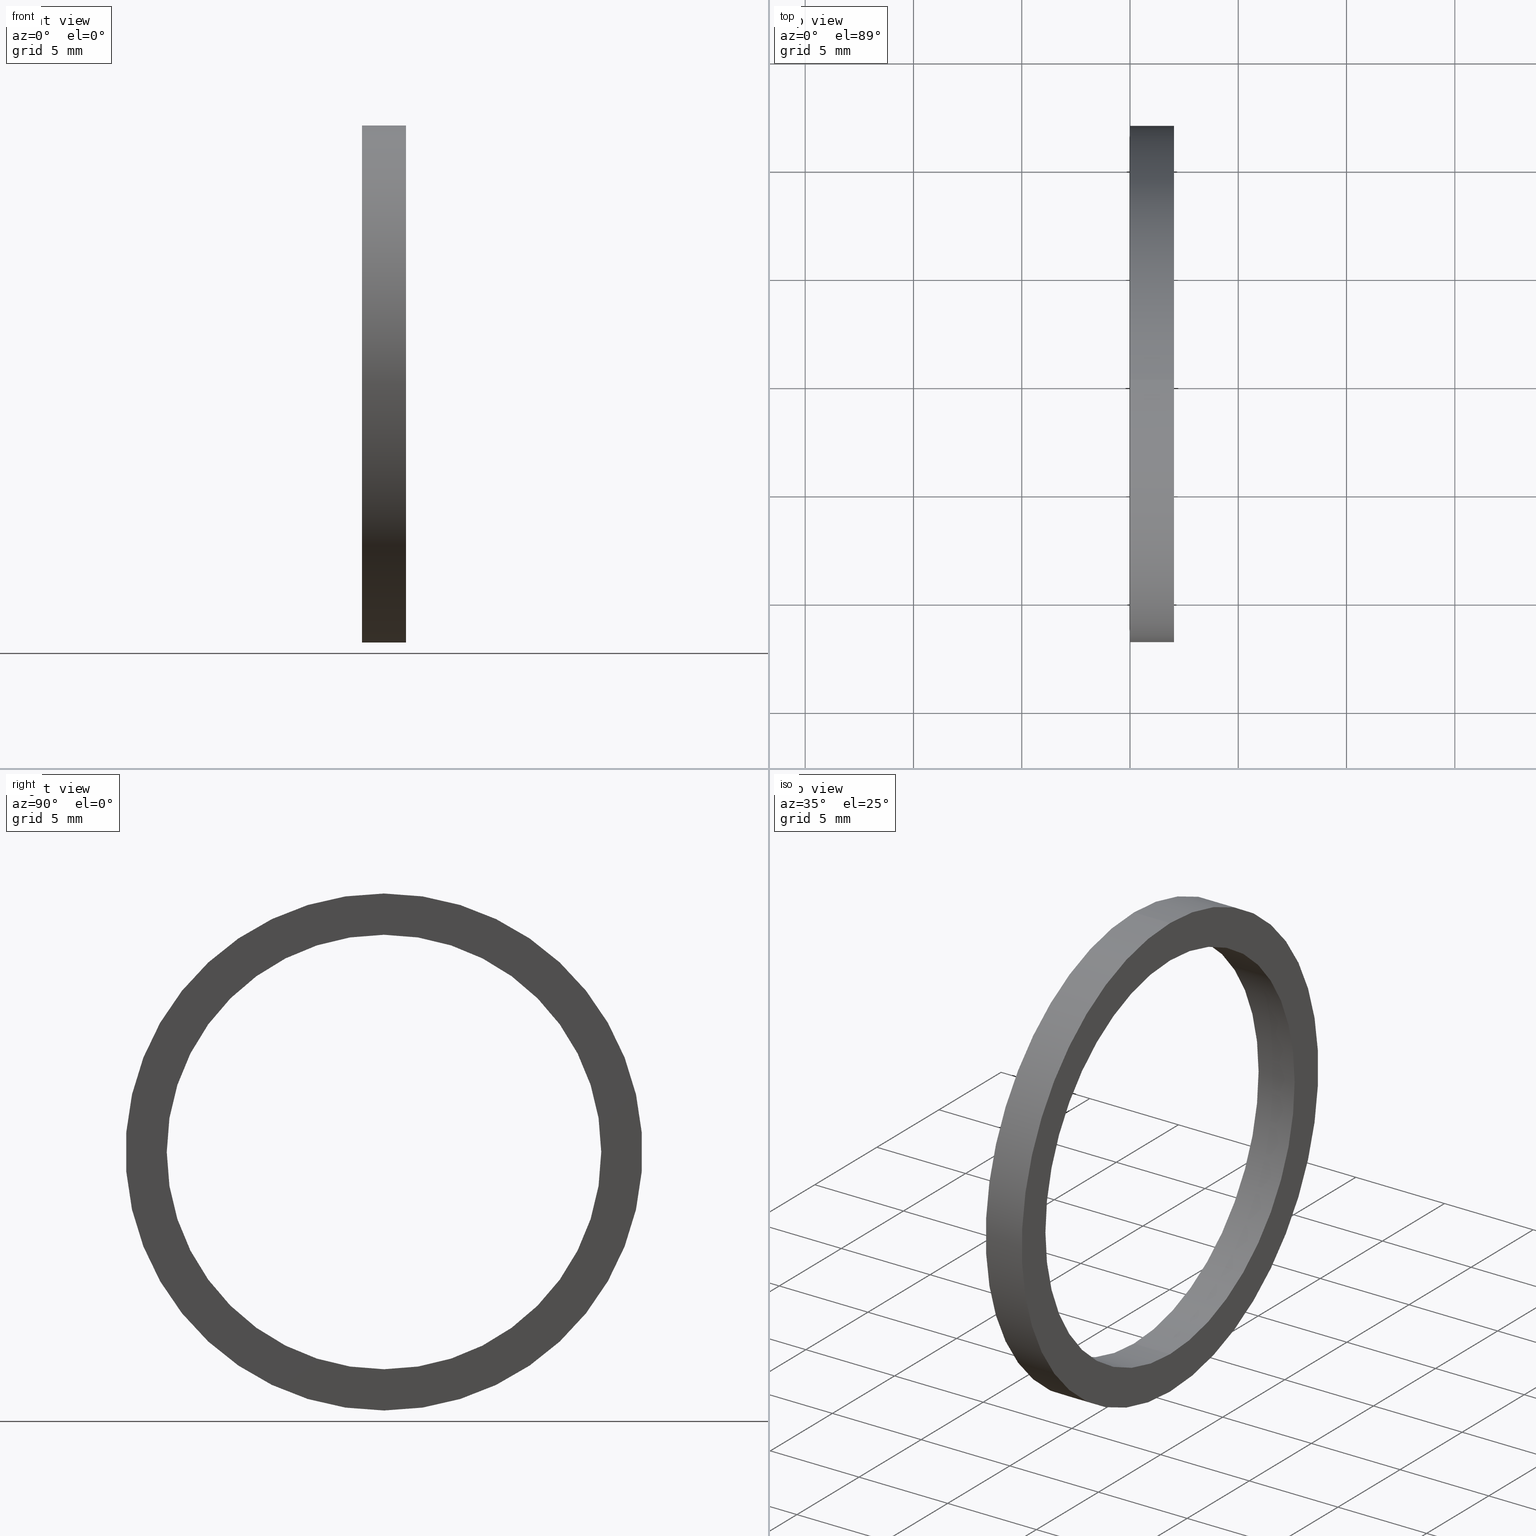
[diagram: canonical four-view strip — front | top / right | iso, engineering-drawing reading convention]
A machine part, canonical four-view strip (front | top / right | iso — engineering-drawing reading convention). The complete STEP part file that produces these views, byte-faithful:
ISO-10303-21;
HEADER;
FILE_DESCRIPTION (( 'STEP AP203' ),
    '1' );
FILE_NAME ('MS-20-NY.STEP',
    '2008-03-29T07:47:55',
    ( '' ),
    ( '' ),
    'SwSTEP 2.0',
    'SolidWorks 2007',
    '' );
FILE_SCHEMA (( 'CONFIG_CONTROL_DESIGN' ));
ENDSEC;

DATA;
#1 = EDGE_LOOP ( 'NONE', ( #6, #2, #64, #65 ) ) ;
#2 = ORIENTED_EDGE ( 'NONE', *, *, #63, .T. ) ;
#3 = ORIENTED_EDGE ( 'NONE', *, *, #13, .F. ) ;
#4 = VERTEX_POINT ( 'NONE', #27 ) ;
#5 = ADVANCED_FACE ( 'NONE', ( #140 ), #137, .T. ) ;
#6 = ORIENTED_EDGE ( 'NONE', *, *, #44, .F. ) ;
#7 = EDGE_LOOP ( 'NONE', ( #57, #38, #39, #40 ) ) ;
#8 = EDGE_CURVE ( 'NONE', #14, #37, #138, .T. ) ;
#9 = EDGE_LOOP ( 'NONE', ( #54, #45, #47, #58 ) ) ;
#10 = ADVANCED_FACE ( 'NONE', ( #129 ), #128, .T. ) ;
#11 = ORIENTED_EDGE ( 'NONE', *, *, #12, .F. ) ;
#12 = EDGE_CURVE ( 'NONE', #34, #14, #123, .T. ) ;
#13 = EDGE_CURVE ( 'NONE', #37, #14, #119, .T. ) ;
#14 = VERTEX_POINT ( 'NONE', #114 ) ;
#15 = ORIENTED_EDGE ( 'NONE', *, *, #13, .T. ) ;
#16 = CC_DESIGN_PERSON_AND_ORGANIZATION_ASSIGNMENT ( #142, #17, ( #143 ) ) ;
#17 = PERSON_AND_ORGANIZATION_ROLE ( 'classification_officer' ) ;
#18 = CC_DESIGN_PERSON_AND_ORGANIZATION_ASSIGNMENT ( #20, #19, ( #23 ) ) ;
#19 = PERSON_AND_ORGANIZATION_ROLE ( 'design_owner' ) ;
#20 = PERSON_AND_ORGANIZATION ( #22, #21 ) ;
#21 = ORGANIZATION ( 'UNSPECIFIED', 'UNSPECIFIED', '' ) ;
#22 = PERSON ( 'UNSPECIFIED', 'UNSPECIFIED', 'UNSPECIFIED', ('UNSPECIFIED'), ('UNSPECIFIED'), ('UNSPECIFIED') ) ;
#23 = PRODUCT ( 'MS-20-NY', 'MS-20-NY', '', ( #24 ) ) ;
#24 = MECHANICAL_CONTEXT ( 'NONE', #26, 'mechanical' ) ;
#25 = APPLICATION_PROTOCOL_DEFINITION ( 'international standard', 'config_control_design', 1994, #26 ) ;
#26 = APPLICATION_CONTEXT ( 'configuration controlled 3d designs of mechanical parts and assemblies' ) ;
#27 = CARTESIAN_POINT ( 'NONE',  ( 0.07999999999999996000, 0.0000000000000000000, 0.4699999999999999700 ) ) ;
#28 = MANIFOLD_SOLID_BREP ( 'NONE', #41 ) ;
#29 = ADVANCED_FACE ( 'NONE', ( #113 ), #112, .F. ) ;
#30 = EDGE_LOOP ( 'NONE', ( #31, #35, #15, #11 ) ) ;
#31 = ORIENTED_EDGE ( 'NONE', *, *, #32, .F. ) ;
#32 = EDGE_CURVE ( 'NONE', #33, #34, #227, .T. ) ;
#33 = VERTEX_POINT ( 'NONE', #218 ) ;
#34 = VERTEX_POINT ( 'NONE', #217 ) ;
#35 = ORIENTED_EDGE ( 'NONE', *, *, #36, .T. ) ;
#36 = EDGE_CURVE ( 'NONE', #33, #37, #216, .T. ) ;
#37 = VERTEX_POINT ( 'NONE', #212 ) ;
#38 = ORIENTED_EDGE ( 'NONE', *, *, #231, .F. ) ;
#39 = ORIENTED_EDGE ( 'NONE', *, *, #12, .T. ) ;
#40 = ORIENTED_EDGE ( 'NONE', *, *, #8, .T. ) ;
#41 = CLOSED_SHELL ( 'NONE', ( #29, #10, #60, #5, #228, #56 ) ) ;
#42 = VERTEX_POINT ( 'NONE', #211 ) ;
#43 = EDGE_CURVE ( 'NONE', #4, #42, #209, .T. ) ;
#44 = EDGE_CURVE ( 'NONE', #42, #46, #210, .T. ) ;
#45 = ORIENTED_EDGE ( 'NONE', *, *, #44, .T. ) ;
#46 = VERTEX_POINT ( 'NONE', #201 ) ;
#47 = ORIENTED_EDGE ( 'NONE', *, *, #48, .F. ) ;
#48 = EDGE_CURVE ( 'NONE', #49, #46, #200, .T. ) ;
#49 = VERTEX_POINT ( 'NONE', #195 ) ;
#50 = ORIENTED_EDGE ( 'NONE', *, *, #51, .T. ) ;
#51 = EDGE_CURVE ( 'NONE', #46, #49, #194, .T. ) ;
#52 = EDGE_LOOP ( 'NONE', ( #53, #3 ) ) ;
#53 = ORIENTED_EDGE ( 'NONE', *, *, #8, .F. ) ;
#54 = ORIENTED_EDGE ( 'NONE', *, *, #43, .T. ) ;
#55 = ORIENTED_EDGE ( 'NONE', *, *, #63, .F. ) ;
#56 = ADVANCED_FACE ( 'NONE', ( #189 ), #187, .F. ) ;
#57 = ORIENTED_EDGE ( 'NONE', *, *, #36, .F. ) ;
#58 = ORIENTED_EDGE ( 'NONE', *, *, #59, .F. ) ;
#59 = EDGE_CURVE ( 'NONE', #4, #49, #94, .T. ) ;
#60 = ADVANCED_FACE ( 'NONE', ( #90, #89 ), #88, .T. ) ;
#61 = EDGE_LOOP ( 'NONE', ( #62, #50 ) ) ;
#62 = ORIENTED_EDGE ( 'NONE', *, *, #48, .T. ) ;
#63 = EDGE_CURVE ( 'NONE', #42, #4, #83, .T. ) ;
#64 = ORIENTED_EDGE ( 'NONE', *, *, #59, .T. ) ;
#65 = ORIENTED_EDGE ( 'NONE', *, *, #51, .F. ) ;
#66 =( LENGTH_UNIT ( ) NAMED_UNIT ( * ) SI_UNIT ( $, .METRE. ) );
#67 = DIRECTION ( 'NONE',  ( 0.0000000000000000000, 0.0000000000000000000, 1.000000000000000000 ) ) ;
#68 = DIRECTION ( 'NONE',  ( -1.000000000000000000, 0.0000000000000000000, 0.0000000000000000000 ) ) ;
#69 = CARTESIAN_POINT ( 'NONE',  ( 0.07999999999999996000, 0.0000000000000000000, 0.0000000000000000000 ) ) ;
#70 = AXIS2_PLACEMENT_3D ( 'NONE', #69, #68, #67 ) ;
#71 = CIRCLE ( 'NONE', #70, 0.3950000000000000200 ) ;
#72 = DIRECTION ( 'NONE',  ( 0.0000000000000000000, 0.0000000000000000000, -1.000000000000000000 ) ) ;
#73 = DIRECTION ( 'NONE',  ( 1.000000000000000000, 0.0000000000000000000, 0.0000000000000000000 ) ) ;
#74 = CARTESIAN_POINT ( 'NONE',  ( 0.08000000000000001600, -0.3950000000000000200, 0.0000000000000000000 ) ) ;
#75 = AXIS2_PLACEMENT_3D ( 'NONE', #74, #73, #72 ) ;
#76 = PLANE ( 'NONE',  #75 ) ;
#77 = FACE_OUTER_BOUND ( 'NONE', #111, .T. ) ;
#78 = FACE_BOUND ( 'NONE', #229, .T. ) ;
#79 = DIRECTION ( 'NONE',  ( 0.0000000000000000000, 0.0000000000000000000, 1.000000000000000000 ) ) ;
#80 = DIRECTION ( 'NONE',  ( -1.000000000000000000, 0.0000000000000000000, 0.0000000000000000000 ) ) ;
#81 = CARTESIAN_POINT ( 'NONE',  ( 0.07999999999999996000, 0.0000000000000000000, 0.0000000000000000000 ) ) ;
#82 = AXIS2_PLACEMENT_3D ( 'NONE', #81, #80, #79 ) ;
#83 = CIRCLE ( 'NONE', #82, 0.4699999999999999700 ) ;
#84 = DIRECTION ( 'NONE',  ( 0.0000000000000000000, 0.0000000000000000000, 1.000000000000000000 ) ) ;
#85 = DIRECTION ( 'NONE',  ( -1.000000000000000000, 0.0000000000000000000, 0.0000000000000000000 ) ) ;
#86 = CARTESIAN_POINT ( 'NONE',  ( 1.438912465741293300E-017, -0.3950000000000000200, 0.0000000000000000000 ) ) ;
#87 = AXIS2_PLACEMENT_3D ( 'NONE', #86, #85, #84 ) ;
#88 = PLANE ( 'NONE',  #87 ) ;
#89 = FACE_BOUND ( 'NONE', #52, .T. ) ;
#90 = FACE_OUTER_BOUND ( 'NONE', #61, .T. ) ;
#91 = DIRECTION ( 'NONE',  ( -1.000000000000000000, 0.0000000000000000000, 0.0000000000000000000 ) ) ;
#92 = VECTOR ( 'NONE', #91, 39.37007874015748100 ) ;
#93 = CARTESIAN_POINT ( 'NONE',  ( -1.721125226614714300, 0.0000000000000000000, 0.4699999999999999700 ) ) ;
#94 = LINE ( 'NONE', #93, #92 ) ;
#95 = DIRECTION ( 'NONE',  ( 0.0000000000000000000, 0.0000000000000000000, 1.000000000000000000 ) ) ;
#96 = DIRECTION ( 'NONE',  ( -1.000000000000000000, 0.0000000000000000000, 0.0000000000000000000 ) ) ;
#97 = CARTESIAN_POINT ( 'NONE',  ( -1.721125226614714300, 0.0000000000000000000, 0.0000000000000000000 ) ) ;
#98 = ORIENTED_EDGE ( 'NONE', *, *, #43, .F. ) ;
#99 = DIRECTION ( 'NONE',  ( 1.000000000000000000, 0.0000000000000000000, 0.0000000000000000000 ) ) ;
#100 = CARTESIAN_POINT ( 'NONE',  ( 0.0000000000000000000, 0.0000000000000000000, 0.0000000000000000000 ) ) ;
#101 = AXIS2_PLACEMENT_3D ( 'NONE', #100, #141, #99 ) ;
#102 = ADVANCED_BREP_SHAPE_REPRESENTATION ( 'MS-20-NY', ( #28, #101 ), #103 ) ;
#103 =( GEOMETRIC_REPRESENTATION_CONTEXT ( 3 ) GLOBAL_UNCERTAINTY_ASSIGNED_CONTEXT ( ( #104 ) ) GLOBAL_UNIT_ASSIGNED_CONTEXT ( ( #107, #106, #105 ) ) REPRESENTATION_CONTEXT ( 'NONE', 'WORKASPACE' ) );
#104 = UNCERTAINTY_MEASURE_WITH_UNIT (LENGTH_MEASURE( 1.000000000000000100E-005 ), #107, 'distance_accuracy_value', 'NONE');
#105 =( NAMED_UNIT ( * ) SI_UNIT ( $, .STERADIAN. ) SOLID_ANGLE_UNIT ( ) );
#106 =( NAMED_UNIT ( * ) PLANE_ANGLE_UNIT ( ) SI_UNIT ( $, .RADIAN. ) );
#107 =( CONVERSION_BASED_UNIT ( 'INCH', #108 ) LENGTH_UNIT ( ) NAMED_UNIT ( #109 ) );
#108 = LENGTH_MEASURE_WITH_UNIT ( LENGTH_MEASURE( 0.02539999999999999900 ), #66 );
#109 = DIMENSIONAL_EXPONENTS ( 1.000000000000000000, 0.0000000000000000000, 0.0000000000000000000, 0.0000000000000000000, 0.0000000000000000000, 0.0000000000000000000, 0.0000000000000000000 ) ;
#110 = ORIENTED_EDGE ( 'NONE', *, *, #32, .T. ) ;
#111 = EDGE_LOOP ( 'NONE', ( #98, #55 ) ) ;
#112 = CYLINDRICAL_SURFACE ( 'NONE', #226, 0.3950000000000000200 ) ;
#113 = FACE_OUTER_BOUND ( 'NONE', #30, .T. ) ;
#114 = CARTESIAN_POINT ( 'NONE',  ( 0.0000000000000000000, 0.0000000000000000000, 0.3950000000000000200 ) ) ;
#115 = DIRECTION ( 'NONE',  ( 0.0000000000000000000, 0.0000000000000000000, 1.000000000000000000 ) ) ;
#116 = DIRECTION ( 'NONE',  ( -1.000000000000000000, 0.0000000000000000000, 0.0000000000000000000 ) ) ;
#117 = CARTESIAN_POINT ( 'NONE',  ( 0.0000000000000000000, 0.0000000000000000000, 0.0000000000000000000 ) ) ;
#118 = AXIS2_PLACEMENT_3D ( 'NONE', #117, #116, #115 ) ;
#119 = CIRCLE ( 'NONE', #118, 0.3950000000000000200 ) ;
#120 = DIRECTION ( 'NONE',  ( -1.000000000000000000, 0.0000000000000000000, 0.0000000000000000000 ) ) ;
#121 = VECTOR ( 'NONE', #120, 39.37007874015748100 ) ;
#122 = CARTESIAN_POINT ( 'NONE',  ( -1.721125226614714300, 0.0000000000000000000, 0.3950000000000000200 ) ) ;
#123 = LINE ( 'NONE', #122, #121 ) ;
#124 = DIRECTION ( 'NONE',  ( 0.0000000000000000000, 0.0000000000000000000, 1.000000000000000000 ) ) ;
#125 = DIRECTION ( 'NONE',  ( -1.000000000000000000, 0.0000000000000000000, 0.0000000000000000000 ) ) ;
#126 = CARTESIAN_POINT ( 'NONE',  ( -1.721125226614714300, 0.0000000000000000000, 0.0000000000000000000 ) ) ;
#127 = AXIS2_PLACEMENT_3D ( 'NONE', #126, #125, #124 ) ;
#128 = CYLINDRICAL_SURFACE ( 'NONE', #127, 0.4699999999999999700 ) ;
#129 = FACE_OUTER_BOUND ( 'NONE', #9, .T. ) ;
#130 = DIRECTION ( 'NONE',  ( 0.0000000000000000000, 0.0000000000000000000, 1.000000000000000000 ) ) ;
#131 = DIRECTION ( 'NONE',  ( -1.000000000000000000, 0.0000000000000000000, 0.0000000000000000000 ) ) ;
#132 = CARTESIAN_POINT ( 'NONE',  ( 0.0000000000000000000, 0.0000000000000000000, 0.0000000000000000000 ) ) ;
#133 = AXIS2_PLACEMENT_3D ( 'NONE', #132, #131, #130 ) ;
#134 = DIRECTION ( 'NONE',  ( 0.0000000000000000000, 0.0000000000000000000, 1.000000000000000000 ) ) ;
#135 = DIRECTION ( 'NONE',  ( -1.000000000000000000, 0.0000000000000000000, 0.0000000000000000000 ) ) ;
#136 = AXIS2_PLACEMENT_3D ( 'NONE', #139, #135, #134 ) ;
#137 = CYLINDRICAL_SURFACE ( 'NONE', #136, 0.4699999999999999700 ) ;
#138 = CIRCLE ( 'NONE', #133, 0.3950000000000000200 ) ;
#139 = CARTESIAN_POINT ( 'NONE',  ( -1.721125226614714300, 0.0000000000000000000, 0.0000000000000000000 ) ) ;
#140 = FACE_OUTER_BOUND ( 'NONE', #1, .T. ) ;
#141 = DIRECTION ( 'NONE',  ( 0.0000000000000000000, 0.0000000000000000000, 1.000000000000000000 ) ) ;
#142 = PERSON_AND_ORGANIZATION ( #22, #21 ) ;
#143 = SECURITY_CLASSIFICATION ( '', '', #144 ) ;
#144 = SECURITY_CLASSIFICATION_LEVEL ( 'unclassified' ) ;
#145 = CC_DESIGN_PERSON_AND_ORGANIZATION_ASSIGNMENT ( #147, #146, ( #162 ) ) ;
#146 = PERSON_AND_ORGANIZATION_ROLE ( 'design_supplier' ) ;
#147 = PERSON_AND_ORGANIZATION ( #22, #21 ) ;
#148 = CC_DESIGN_PERSON_AND_ORGANIZATION_ASSIGNMENT ( #150, #149, ( #162 ) ) ;
#149 = PERSON_AND_ORGANIZATION_ROLE ( 'creator' ) ;
#150 = PERSON_AND_ORGANIZATION ( #22, #21 ) ;
#151 = CC_DESIGN_APPROVAL ( #159, ( #162 ) ) ;
#152 = APPROVAL_DATE_TIME ( #153, #159 ) ;
#153 = DATE_AND_TIME ( #154, #155 ) ;
#154 = CALENDAR_DATE ( 2008, 29, 3 ) ;
#155 = LOCAL_TIME ( 13, 17, 55.00000000000000000, #156 ) ;
#156 = COORDINATED_UNIVERSAL_TIME_OFFSET ( 5, 30, .AHEAD. ) ;
#157 = APPROVAL_PERSON_ORGANIZATION ( #161, #159, #158 ) ;
#158 = APPROVAL_ROLE ( '' ) ;
#159 = APPROVAL ( #160, 'UNSPECIFIED' ) ;
#160 = APPROVAL_STATUS ( 'not_yet_approved' ) ;
#161 = PERSON_AND_ORGANIZATION ( #22, #21 ) ;
#162 = PRODUCT_DEFINITION_FORMATION_WITH_SPECIFIED_SOURCE ( 'ANY', '', #23, .NOT_KNOWN. ) ;
#163 = CC_DESIGN_DATE_AND_TIME_ASSIGNMENT ( #165, #164, ( #183 ) ) ;
#164 = DATE_TIME_ROLE ( 'creation_date' ) ;
#165 = DATE_AND_TIME ( #166, #167 ) ;
#166 = CALENDAR_DATE ( 2008, 29, 3 ) ;
#167 = LOCAL_TIME ( 13, 17, 55.00000000000000000, #168 ) ;
#168 = COORDINATED_UNIVERSAL_TIME_OFFSET ( 5, 30, .AHEAD. ) ;
#169 = CC_DESIGN_PERSON_AND_ORGANIZATION_ASSIGNMENT ( #171, #170, ( #183 ) ) ;
#170 = PERSON_AND_ORGANIZATION_ROLE ( 'creator' ) ;
#171 = PERSON_AND_ORGANIZATION ( #22, #21 ) ;
#172 = CC_DESIGN_APPROVAL ( #180, ( #183 ) ) ;
#173 = APPROVAL_DATE_TIME ( #174, #180 ) ;
#174 = DATE_AND_TIME ( #175, #176 ) ;
#175 = CALENDAR_DATE ( 2008, 29, 3 ) ;
#176 = LOCAL_TIME ( 13, 17, 55.00000000000000000, #177 ) ;
#177 = COORDINATED_UNIVERSAL_TIME_OFFSET ( 5, 30, .AHEAD. ) ;
#178 = APPROVAL_PERSON_ORGANIZATION ( #182, #180, #179 ) ;
#179 = APPROVAL_ROLE ( '' ) ;
#180 = APPROVAL ( #181, 'UNSPECIFIED' ) ;
#181 = APPROVAL_STATUS ( 'not_yet_approved' ) ;
#182 = PERSON_AND_ORGANIZATION ( #22, #21 ) ;
#183 = PRODUCT_DEFINITION ( 'UNKNOWN', '', #162, #184 ) ;
#184 = DESIGN_CONTEXT ( 'detailed design', #186, 'design' ) ;
#185 = APPLICATION_PROTOCOL_DEFINITION ( 'international standard', 'config_control_design', 1994, #186 ) ;
#186 = APPLICATION_CONTEXT ( 'configuration controlled 3d designs of mechanical parts and assemblies' ) ;
#187 = CYLINDRICAL_SURFACE ( 'NONE', #188, 0.3950000000000000200 ) ;
#188 = AXIS2_PLACEMENT_3D ( 'NONE', #97, #96, #95 ) ;
#189 = FACE_OUTER_BOUND ( 'NONE', #7, .T. ) ;
#190 = DIRECTION ( 'NONE',  ( 0.0000000000000000000, 0.0000000000000000000, 1.000000000000000000 ) ) ;
#191 = DIRECTION ( 'NONE',  ( -1.000000000000000000, 0.0000000000000000000, 0.0000000000000000000 ) ) ;
#192 = CARTESIAN_POINT ( 'NONE',  ( 0.0000000000000000000, 0.0000000000000000000, 0.0000000000000000000 ) ) ;
#193 = AXIS2_PLACEMENT_3D ( 'NONE', #192, #191, #190 ) ;
#194 = CIRCLE ( 'NONE', #193, 0.4699999999999999700 ) ;
#195 = CARTESIAN_POINT ( 'NONE',  ( 0.0000000000000000000, 0.0000000000000000000, 0.4699999999999999700 ) ) ;
#196 = DIRECTION ( 'NONE',  ( 0.0000000000000000000, 0.0000000000000000000, 1.000000000000000000 ) ) ;
#197 = DIRECTION ( 'NONE',  ( -1.000000000000000000, 0.0000000000000000000, 0.0000000000000000000 ) ) ;
#198 = CARTESIAN_POINT ( 'NONE',  ( 0.0000000000000000000, 0.0000000000000000000, 0.0000000000000000000 ) ) ;
#199 = AXIS2_PLACEMENT_3D ( 'NONE', #198, #197, #196 ) ;
#200 = CIRCLE ( 'NONE', #199, 0.4699999999999999700 ) ;
#201 = CARTESIAN_POINT ( 'NONE',  ( 0.0000000000000000000, 5.755839955992559700E-017, -0.4699999999999999700 ) ) ;
#202 = DIRECTION ( 'NONE',  ( -1.000000000000000000, 0.0000000000000000000, 0.0000000000000000000 ) ) ;
#203 = VECTOR ( 'NONE', #202, 39.37007874015748100 ) ;
#204 = CARTESIAN_POINT ( 'NONE',  ( -1.721125226614714300, 5.755839955992559700E-017, -0.4699999999999999700 ) ) ;
#205 = DIRECTION ( 'NONE',  ( 0.0000000000000000000, 0.0000000000000000000, 1.000000000000000000 ) ) ;
#206 = DIRECTION ( 'NONE',  ( -1.000000000000000000, 0.0000000000000000000, 0.0000000000000000000 ) ) ;
#207 = CARTESIAN_POINT ( 'NONE',  ( 0.07999999999999996000, 0.0000000000000000000, 0.0000000000000000000 ) ) ;
#208 = AXIS2_PLACEMENT_3D ( 'NONE', #207, #206, #205 ) ;
#209 = CIRCLE ( 'NONE', #208, 0.4699999999999999700 ) ;
#210 = LINE ( 'NONE', #204, #203 ) ;
#211 = CARTESIAN_POINT ( 'NONE',  ( 0.07999999999999996000, 5.755839955992559700E-017, -0.4699999999999999700 ) ) ;
#212 = CARTESIAN_POINT ( 'NONE',  ( 0.0000000000000000000, 4.837354856632045600E-017, -0.3950000000000000200 ) ) ;
#213 = DIRECTION ( 'NONE',  ( -1.000000000000000000, 0.0000000000000000000, 0.0000000000000000000 ) ) ;
#214 = VECTOR ( 'NONE', #213, 39.37007874015748100 ) ;
#215 = CARTESIAN_POINT ( 'NONE',  ( -1.721125226614714300, 4.837354856632045600E-017, -0.3950000000000000200 ) ) ;
#216 = LINE ( 'NONE', #215, #214 ) ;
#217 = CARTESIAN_POINT ( 'NONE',  ( 0.07999999999999996000, 0.0000000000000000000, 0.3950000000000000200 ) ) ;
#218 = CARTESIAN_POINT ( 'NONE',  ( 0.07999999999999996000, 4.837354856632045600E-017, -0.3950000000000000200 ) ) ;
#219 = DIRECTION ( 'NONE',  ( 0.0000000000000000000, 0.0000000000000000000, 1.000000000000000000 ) ) ;
#220 = DIRECTION ( 'NONE',  ( -1.000000000000000000, 0.0000000000000000000, 0.0000000000000000000 ) ) ;
#221 = CARTESIAN_POINT ( 'NONE',  ( 0.07999999999999996000, 0.0000000000000000000, 0.0000000000000000000 ) ) ;
#222 = AXIS2_PLACEMENT_3D ( 'NONE', #221, #220, #219 ) ;
#223 = DIRECTION ( 'NONE',  ( 0.0000000000000000000, 0.0000000000000000000, 1.000000000000000000 ) ) ;
#224 = DIRECTION ( 'NONE',  ( -1.000000000000000000, 0.0000000000000000000, 0.0000000000000000000 ) ) ;
#225 = CARTESIAN_POINT ( 'NONE',  ( -1.721125226614714300, 0.0000000000000000000, 0.0000000000000000000 ) ) ;
#226 = AXIS2_PLACEMENT_3D ( 'NONE', #225, #224, #223 ) ;
#227 = CIRCLE ( 'NONE', #222, 0.3950000000000000200 ) ;
#228 = ADVANCED_FACE ( 'NONE', ( #78, #77 ), #76, .T. ) ;
#229 = EDGE_LOOP ( 'NONE', ( #230, #110 ) ) ;
#230 = ORIENTED_EDGE ( 'NONE', *, *, #231, .T. ) ;
#231 = EDGE_CURVE ( 'NONE', #34, #33, #71, .T. ) ;
#232 = DATE_AND_TIME ( #233, #234 ) ;
#233 = CALENDAR_DATE ( 2008, 29, 3 ) ;
#234 = LOCAL_TIME ( 13, 17, 55.00000000000000000, #252 ) ;
#235 = SHAPE_DEFINITION_REPRESENTATION ( #251, #102 ) ;
#236 = PRODUCT_RELATED_PRODUCT_CATEGORY ( 'detail', '', ( #23 ) ) ;
#237 = CC_DESIGN_SECURITY_CLASSIFICATION ( #143, ( #162 ) ) ;
#238 = CC_DESIGN_APPROVAL ( #249, ( #143 ) ) ;
#239 = DATE_TIME_ROLE ( 'classification_date' ) ;
#240 = APPROVAL_DATE_TIME ( #241, #249 ) ;
#241 = DATE_AND_TIME ( #242, #243 ) ;
#242 = CALENDAR_DATE ( 2008, 29, 3 ) ;
#243 = LOCAL_TIME ( 13, 17, 55.00000000000000000, #244 ) ;
#244 = COORDINATED_UNIVERSAL_TIME_OFFSET ( 5, 30, .AHEAD. ) ;
#245 = APPROVAL_PERSON_ORGANIZATION ( #247, #249, #248 ) ;
#246 = APPROVAL_STATUS ( 'not_yet_approved' ) ;
#247 = PERSON_AND_ORGANIZATION ( #22, #21 ) ;
#248 = APPROVAL_ROLE ( '' ) ;
#249 = APPROVAL ( #246, 'UNSPECIFIED' ) ;
#250 = CC_DESIGN_DATE_AND_TIME_ASSIGNMENT ( #232, #239, ( #143 ) ) ;
#251 = PRODUCT_DEFINITION_SHAPE ( 'NONE', 'NONE',  #183 ) ;
#252 = COORDINATED_UNIVERSAL_TIME_OFFSET ( 5, 30, .AHEAD. ) ;
ENDSEC;
END-ISO-10303-21;
